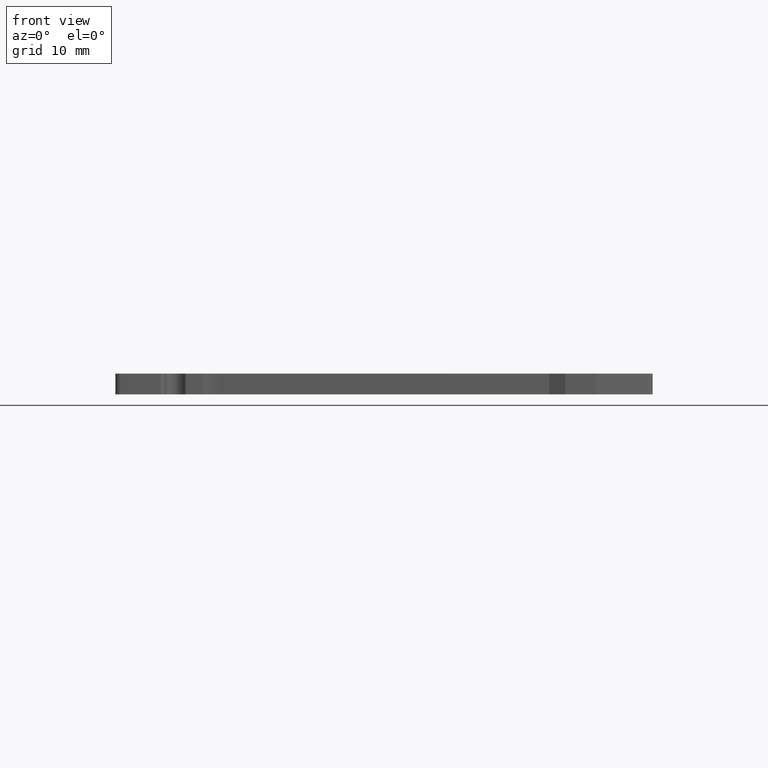
[diagram: clean part render]
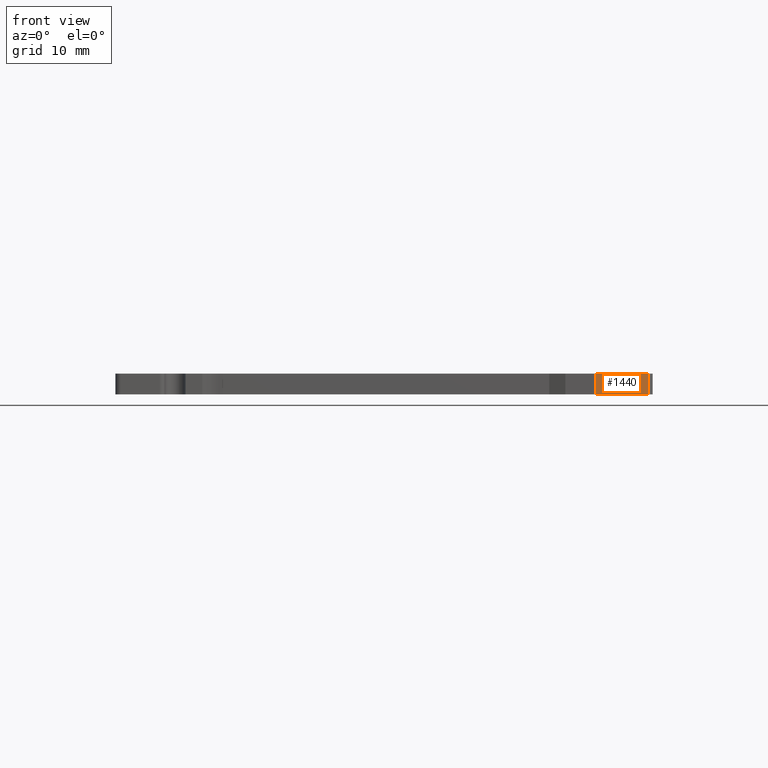
[diagram: same view with one face highlighted and labeled with its STEP entity id]
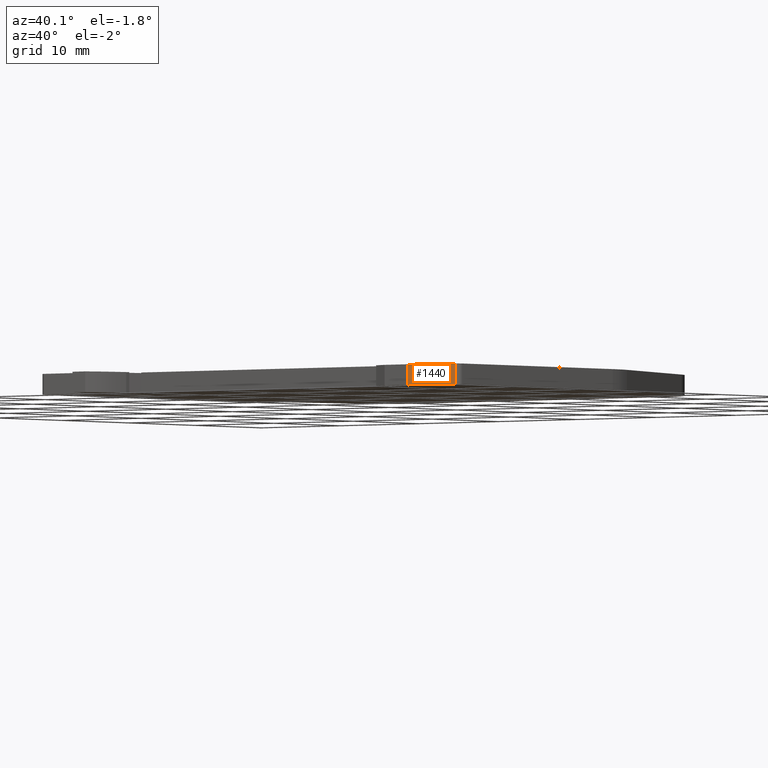
[diagram: same view with one face highlighted and labeled with its STEP entity id]
A machine part, front view. The second image highlights one B-rep face of the part: STEP entity #1440.
A second angle (auxiliary view) of the same face is appended — the face is thin or edge-on in the first view.
In plain terms, the highlighted planar face has unit normal (-0.2164, 0.9763, 0).
Its self-contained STEP definition (entity closure, byte-faithful):
#143 = VECTOR ( 'NONE', #271, 1000.000000000000100 ) ;
#166 = VECTOR ( 'NONE', #1201, 1000.000000000000000 ) ;
#179 = VECTOR ( 'NONE', #1486, 1000.000000000000000 ) ;
#209 = AXIS2_PLACEMENT_3D ( 'NONE', #1705, #1729, #1751 ) ;
#239 = VECTOR ( 'NONE', #1595, 1000.000000000000000 ) ;
#270 = CARTESIAN_POINT ( 'NONE',  ( 1794.300570147180500, 693.8109218058500600, 0.0000000000000000000 ) ) ;
#271 = DIRECTION ( 'NONE',  ( 0.9762960071199680000, 0.2164396139379466400, 0.0000000000000000000 ) ) ;
#322 = EDGE_LOOP ( 'NONE', ( #719, #689, #647, #673 ) ) ;
#394 = VERTEX_POINT ( 'NONE', #799 ) ;
#419 = VERTEX_POINT ( 'NONE', #847 ) ;
#430 = VERTEX_POINT ( 'NONE', #848 ) ;
#487 = VERTEX_POINT ( 'NONE', #832 ) ;
#647 = ORIENTED_EDGE ( 'NONE', *, *, #1353, .T. ) ;
#673 = ORIENTED_EDGE ( 'NONE', *, *, #1352, .F. ) ;
#689 = ORIENTED_EDGE ( 'NONE', *, *, #1378, .F. ) ;
#719 = ORIENTED_EDGE ( 'NONE', *, *, #1401, .F. ) ;
#799 = CARTESIAN_POINT ( 'NONE',  ( 1794.300570147180200, 693.8109218058500600, 0.0000000000000000000 ) ) ;
#832 = CARTESIAN_POINT ( 'NONE',  ( 1794.300570147180200, 693.8109218058500600, 2.000000000000000000 ) ) ;
#847 = CARTESIAN_POINT ( 'NONE',  ( 1799.408789954153200, 694.9433868726627000, 2.000000000000000000 ) ) ;
#848 = CARTESIAN_POINT ( 'NONE',  ( 1799.408789954153200, 694.9433868726623600, 4.336808689942017700E-016 ) ) ;
#1192 = CARTESIAN_POINT ( 'NONE',  ( 1799.408789954152100, 694.9433868726624700, 2.000000000000000000 ) ) ;
#1201 = DIRECTION ( 'NONE',  ( -0.0000000000000000000, -0.0000000000000000000, -1.000000000000000000 ) ) ;
#1206 = LINE ( 'NONE', #270, #143 ) ;
#1219 = LINE ( 'NONE', #1192, #166 ) ;
#1352 = EDGE_CURVE ( 'NONE', #419, #430, #1219, .T. ) ;
#1353 = EDGE_CURVE ( 'NONE', #394, #430, #1206, .T. ) ;
#1378 = EDGE_CURVE ( 'NONE', #394, #487, #1474, .T. ) ;
#1401 = EDGE_CURVE ( 'NONE', #487, #419, #1592, .T. ) ;
#1440 = ADVANCED_FACE ( 'NONE', ( #1708 ), #1737, .F. ) ;
#1474 = LINE ( 'NONE', #1489, #179 ) ;
#1486 = DIRECTION ( 'NONE',  ( 0.0000000000000000000, 0.0000000000000000000, 1.000000000000000000 ) ) ;
#1489 = CARTESIAN_POINT ( 'NONE',  ( 1794.300570147180500, 693.8109218058500600, 2.000000000000000000 ) ) ;
#1572 = CARTESIAN_POINT ( 'NONE',  ( 1794.300570147180700, 693.8109218058500600, 2.000000000000000000 ) ) ;
#1592 = LINE ( 'NONE', #1572, #239 ) ;
#1595 = DIRECTION ( 'NONE',  ( 0.9762960071199376900, 0.2164396139380834700, -0.0000000000000000000 ) ) ;
#1705 = CARTESIAN_POINT ( 'NONE',  ( 1794.300570147180700, 693.8109218058500600, 2.000000000000000000 ) ) ;
#1708 = FACE_OUTER_BOUND ( 'NONE', #322, .T. ) ;
#1729 = DIRECTION ( 'NONE',  ( -0.2164396139380834700, 0.9762960071199376900, 0.0000000000000000000 ) ) ;
#1737 = PLANE ( 'NONE',  #209 ) ;
#1751 = DIRECTION ( 'NONE',  ( -0.9762960071199376900, -0.2164396139380834700, 0.0000000000000000000 ) ) ;